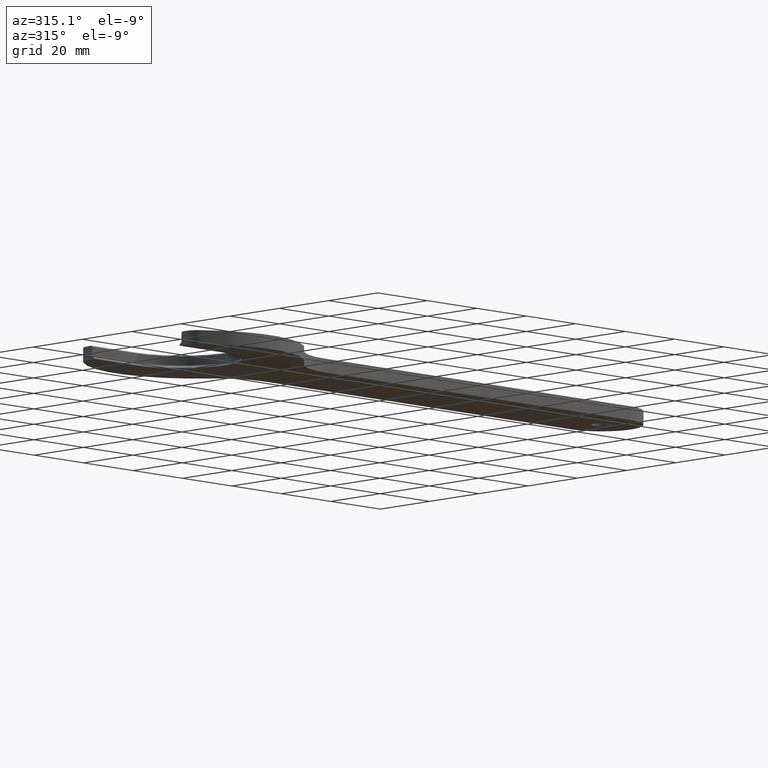
[diagram: clean part render]
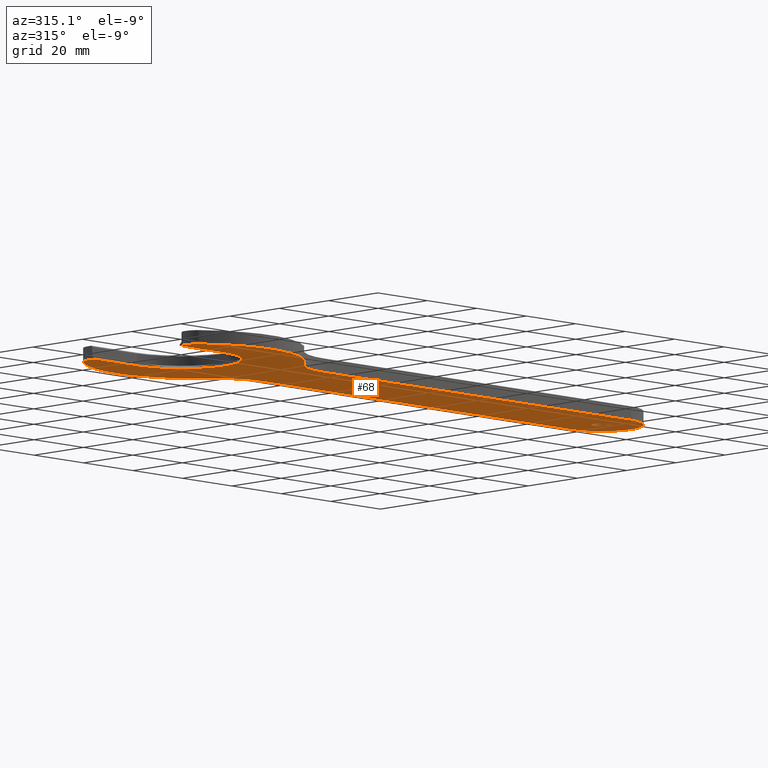
[diagram: same view with one face highlighted and labeled with its STEP entity id]
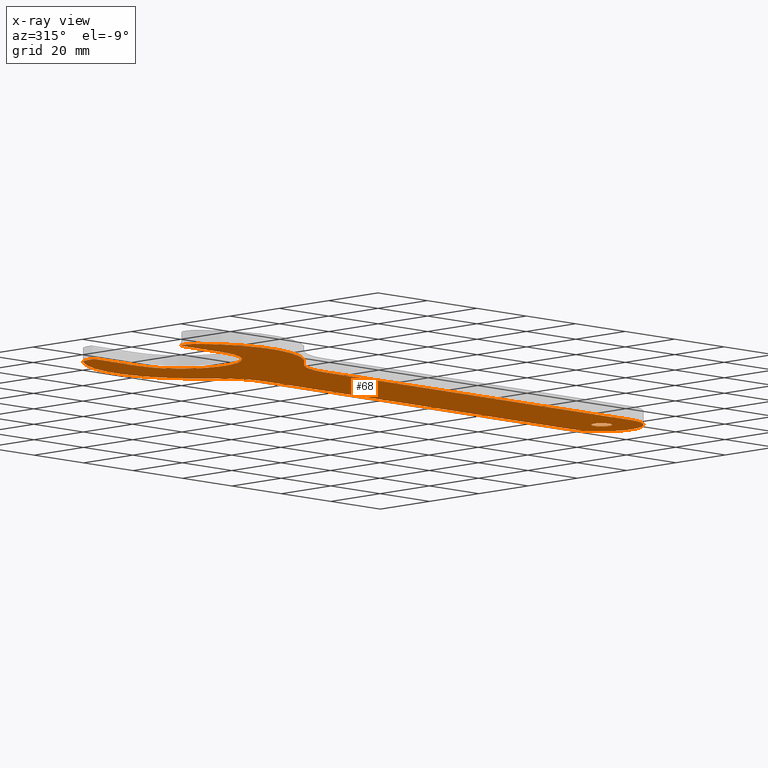
[diagram: x-ray of the same camera — body ghosted, the highlighted face saturated]
A machine part, auxiliary view. The second image highlights one B-rep face of the part: STEP entity #68.
The next image is the same camera in x-ray: the body ghosted, the highlighted face saturated — about 0% of this face is hidden behind the body in this view.
In plain terms, the highlighted planar face has unit normal (0, 0, 1).
Its self-contained STEP definition (entity closure, byte-faithful):
#68 = ADVANCED_FACE( '', ( #146, #147 ), #148, .F. );
#146 = FACE_BOUND( '', #234, .T. );
#147 = FACE_OUTER_BOUND( '', #235, .T. );
#148 = PLANE( '', #236 );
#234 = EDGE_LOOP( '', ( #361 ) );
#235 = EDGE_LOOP( '', ( #362, #363, #364, #365, #366, #367, #368, #369, #370, #371, #372, #373, #374, #375 ) );
#236 = AXIS2_PLACEMENT_3D( '', #376, #377, #378 );
#361 = ORIENTED_EDGE( '', *, *, #562, .T. );
#362 = ORIENTED_EDGE( '', *, *, #563, .T. );
#363 = ORIENTED_EDGE( '', *, *, #564, .T. );
#364 = ORIENTED_EDGE( '', *, *, #565, .T. );
#365 = ORIENTED_EDGE( '', *, *, #539, .T. );
#366 = ORIENTED_EDGE( '', *, *, #566, .T. );
#367 = ORIENTED_EDGE( '', *, *, #567, .T. );
#368 = ORIENTED_EDGE( '', *, *, #553, .T. );
#369 = ORIENTED_EDGE( '', *, *, #568, .T. );
#370 = ORIENTED_EDGE( '', *, *, #569, .T. );
#371 = ORIENTED_EDGE( '', *, *, #570, .T. );
#372 = ORIENTED_EDGE( '', *, *, #571, .T. );
#373 = ORIENTED_EDGE( '', *, *, #572, .T. );
#374 = ORIENTED_EDGE( '', *, *, #573, .T. );
#375 = ORIENTED_EDGE( '', *, *, #531, .T. );
#376 = CARTESIAN_POINT( '', ( 45.8319727664486, 32.0000000000000, -2.00000000000000 ) );
#377 = DIRECTION( '', ( 0.000000000000000, 0.000000000000000, 1.00000000000000 ) );
#378 = DIRECTION( '', ( 1.00000000000000, 0.000000000000000, 0.000000000000000 ) );
#531 = EDGE_CURVE( '', #623, #628, #630, .T. );
#539 = EDGE_CURVE( '', #642, #640, #643, .F. );
#553 = EDGE_CURVE( '', #662, #663, #664, .T. );
#562 = EDGE_CURVE( '', #677, #677, #678, .T. );
#563 = EDGE_CURVE( '', #628, #679, #680, .T. );
#564 = EDGE_CURVE( '', #679, #681, #682, .T. );
#565 = EDGE_CURVE( '', #681, #642, #683, .T. );
#566 = EDGE_CURVE( '', #640, #684, #685, .T. );
#567 = EDGE_CURVE( '', #684, #662, #686, .T. );
#568 = EDGE_CURVE( '', #663, #687, #688, .T. );
#569 = EDGE_CURVE( '', #687, #689, #690, .T. );
#570 = EDGE_CURVE( '', #689, #691, #692, .T. );
#571 = EDGE_CURVE( '', #691, #693, #694, .T. );
#572 = EDGE_CURVE( '', #693, #695, #696, .F. );
#573 = EDGE_CURVE( '', #695, #623, #697, .T. );
#623 = VERTEX_POINT( '', #758 );
#628 = VERTEX_POINT( '', #765 );
#630 = LINE( '', #768, #769 );
#640 = VERTEX_POINT( '', #782 );
#642 = VERTEX_POINT( '', #785 );
#643 = CIRCLE( '', #786, 5.00000000000000 );
#662 = VERTEX_POINT( '', #812 );
#663 = VERTEX_POINT( '', #813 );
#664 = LINE( '', #814, #815 );
#677 = VERTEX_POINT( '', #834 );
#678 = CIRCLE( '', #835, 3.00000000000000 );
#679 = VERTEX_POINT( '', #836 );
#680 = CIRCLE( '', #837, 17.3500000000000 );
#681 = VERTEX_POINT( '', #838 );
#682 = LINE( '', #839, #840 );
#683 = LINE( '', #841, #842 );
#684 = VERTEX_POINT( '', #843 );
#685 = CIRCLE( '', #844, 32.5000000000000 );
#686 = CIRCLE( '', #845, 20.0000000000000 );
#687 = VERTEX_POINT( '', #846 );
#688 = CIRCLE( '', #847, 12.0000000000000 );
#689 = VERTEX_POINT( '', #848 );
#690 = LINE( '', #849, #850 );
#691 = VERTEX_POINT( '', #851 );
#692 = CIRCLE( '', #852, 20.0000000000000 );
#693 = VERTEX_POINT( '', #853 );
#694 = CIRCLE( '', #854, 32.5000000000000 );
#695 = VERTEX_POINT( '', #855 );
#696 = CIRCLE( '', #856, 5.00000000000000 );
#697 = LINE( '', #857, #858 );
#758 = CARTESIAN_POINT( '', ( -18.0000000000000, -17.3500000000000, -2.00000000000000 ) );
#765 = CARTESIAN_POINT( '', ( 0.000000000000000, -17.3500000000000, -2.00000000000000 ) );
#768 = CARTESIAN_POINT( '', ( 45.8319727664486, -17.3500000000000, -2.00000000000000 ) );
#769 = VECTOR( '', #934, 1000.00000000000 );
#782 = CARTESIAN_POINT( '', ( -16.2727272727273, 23.5707361383449, -2.00000000000000 ) );
#785 = CARTESIAN_POINT( '', ( -18.0000000000000, 19.7906228862918, -2.00000000000000 ) );
#786 = AXIS2_PLACEMENT_3D( '', #942, #943, #944 );
#812 = CARTESIAN_POINT( '', ( 45.8319727664486, 12.0000000000000, -2.00000000000000 ) );
#813 = CARTESIAN_POINT( '', ( 170.000000000000, 12.0000000000000, -2.00000000000000 ) );
#814 = CARTESIAN_POINT( '', ( 45.8319727664486, 12.0000000000000, -2.00000000000000 ) );
#815 = VECTOR( '', #958, 1000.00000000000 );
#834 = CARTESIAN_POINT( '', ( 173.000000000000, 0.000000000000000, -2.00000000000000 ) );
#835 = AXIS2_PLACEMENT_3D( '', #965, #966, #967 );
#836 = CARTESIAN_POINT( '', ( 0.000000000000000, 17.3500000000000, -2.00000000000000 ) );
#837 = AXIS2_PLACEMENT_3D( '', #968, #969, #970 );
#838 = CARTESIAN_POINT( '', ( -18.0000000000000, 17.3500000000000, -2.00000000000000 ) );
#839 = CARTESIAN_POINT( '', ( 45.8319727664486, 17.3500000000000, -2.00000000000000 ) );
#840 = VECTOR( '', #971, 1000.00000000000 );
#841 = CARTESIAN_POINT( '', ( -18.0000000000000, 21.9619250064100, -2.00000000000000 ) );
#842 = VECTOR( '', #972, 1000.00000000000 );
#843 = CARTESIAN_POINT( '', ( 30.2769355220872, 19.4285714285714, -2.00000000000000 ) );
#844 = AXIS2_PLACEMENT_3D( '', #973, #974, #975 );
#845 = AXIS2_PLACEMENT_3D( '', #976, #977, #978 );
#846 = CARTESIAN_POINT( '', ( 170.000000000000, -12.0000000000000, -2.00000000000000 ) );
#847 = AXIS2_PLACEMENT_3D( '', #979, #980, #981 );
#848 = CARTESIAN_POINT( '', ( 45.8319727664486, -12.0000000000000, -2.00000000000000 ) );
#849 = CARTESIAN_POINT( '', ( 170.000000000000, -12.0000000000000, -2.00000000000000 ) );
#850 = VECTOR( '', #982, 1000.00000000000 );
#851 = CARTESIAN_POINT( '', ( 30.2769355220873, -19.4285714285714, -2.00000000000000 ) );
#852 = AXIS2_PLACEMENT_3D( '', #983, #984, #985 );
#853 = CARTESIAN_POINT( '', ( -16.2727272727272, -23.5707361383449, -2.00000000000000 ) );
#854 = AXIS2_PLACEMENT_3D( '', #986, #987, #988 );
#855 = CARTESIAN_POINT( '', ( -18.0000000000000, -19.7906228862918, -2.00000000000000 ) );
#856 = AXIS2_PLACEMENT_3D( '', #989, #990, #991 );
#857 = CARTESIAN_POINT( '', ( -18.0000000000000, -17.1000000000000, -2.00000000000000 ) );
#858 = VECTOR( '', #992, 1000.00000000000 );
#934 = DIRECTION( '', ( 1.00000000000000, 0.000000000000000, 0.000000000000000 ) );
#942 = CARTESIAN_POINT( '', ( -13.0000000000000, 19.7906228862918, -2.00000000000000 ) );
#943 = DIRECTION( '', ( 0.000000000000000, 0.000000000000000, 1.00000000000000 ) );
#944 = DIRECTION( '', ( 1.00000000000000, 0.000000000000000, 0.000000000000000 ) );
#958 = DIRECTION( '', ( 1.00000000000000, 0.000000000000000, 0.000000000000000 ) );
#965 = CARTESIAN_POINT( '', ( 170.000000000000, 0.000000000000000, -2.00000000000000 ) );
#966 = DIRECTION( '', ( 0.000000000000000, 0.000000000000000, 1.00000000000000 ) );
#967 = DIRECTION( '', ( 1.00000000000000, 0.000000000000000, 0.000000000000000 ) );
#968 = CARTESIAN_POINT( '', ( 0.000000000000000, 0.000000000000000, -2.00000000000000 ) );
#969 = DIRECTION( '', ( 0.000000000000000, 0.000000000000000, 1.00000000000000 ) );
#970 = DIRECTION( '', ( 1.00000000000000, 0.000000000000000, 0.000000000000000 ) );
#971 = DIRECTION( '', ( -1.00000000000000, -1.92747052886310E-016, 0.000000000000000 ) );
#972 = DIRECTION( '', ( 7.13595324358029E-016, 1.00000000000000, 0.000000000000000 ) );
#973 = CARTESIAN_POINT( '', ( 5.00000000000000, -1.00000000000000, -2.00000000000000 ) );
#974 = DIRECTION( '', ( 0.000000000000000, 0.000000000000000, -1.00000000000000 ) );
#975 = DIRECTION( '', ( 1.00000000000000, 0.000000000000000, 0.000000000000000 ) );
#976 = CARTESIAN_POINT( '', ( 45.8319727664486, 32.0000000000000, -2.00000000000000 ) );
#977 = DIRECTION( '', ( 0.000000000000000, 0.000000000000000, 1.00000000000000 ) );
#978 = DIRECTION( '', ( 1.00000000000000, 0.000000000000000, 0.000000000000000 ) );
#979 = CARTESIAN_POINT( '', ( 170.000000000000, 0.000000000000000, -2.00000000000000 ) );
#980 = DIRECTION( '', ( 0.000000000000000, 0.000000000000000, -1.00000000000000 ) );
#981 = DIRECTION( '', ( -1.00000000000000, 0.000000000000000, 0.000000000000000 ) );
#982 = DIRECTION( '', ( -1.00000000000000, 0.000000000000000, 0.000000000000000 ) );
#983 = CARTESIAN_POINT( '', ( 45.8319727664486, -32.0000000000000, -2.00000000000000 ) );
#984 = DIRECTION( '', ( 0.000000000000000, 0.000000000000000, 1.00000000000000 ) );
#985 = DIRECTION( '', ( 1.00000000000000, 0.000000000000000, 0.000000000000000 ) );
#986 = CARTESIAN_POINT( '', ( 5.00000000000000, 1.00000000000000, -2.00000000000000 ) );
#987 = DIRECTION( '', ( 0.000000000000000, 0.000000000000000, -1.00000000000000 ) );
#988 = DIRECTION( '', ( 1.00000000000000, 0.000000000000000, 0.000000000000000 ) );
#989 = CARTESIAN_POINT( '', ( -13.0000000000000, -19.7906228862918, -2.00000000000000 ) );
#990 = DIRECTION( '', ( 0.000000000000000, 0.000000000000000, 1.00000000000000 ) );
#991 = DIRECTION( '', ( 1.00000000000000, 0.000000000000000, 0.000000000000000 ) );
#992 = DIRECTION( '', ( 0.000000000000000, 1.00000000000000, 0.000000000000000 ) );